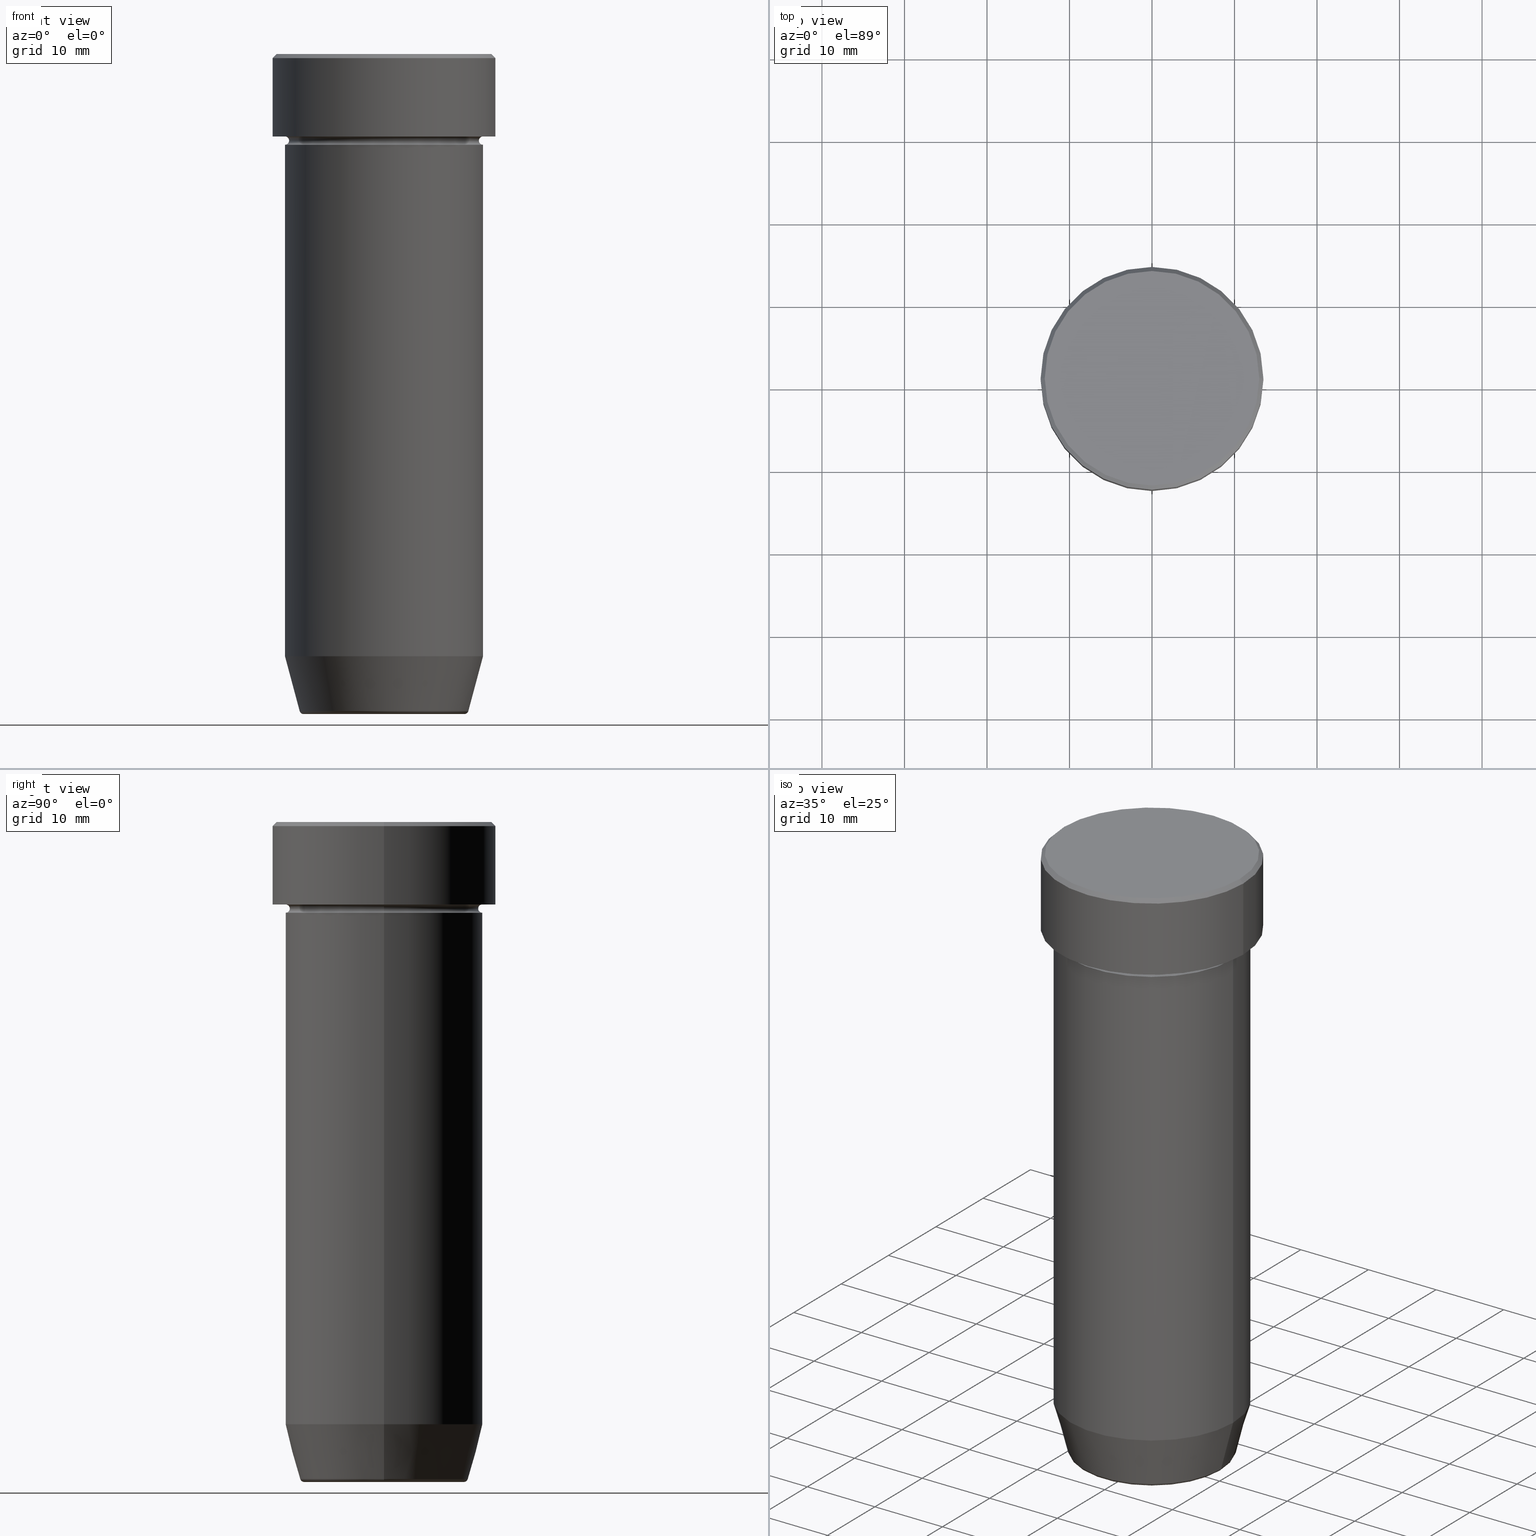
[diagram: canonical four-view strip — front | top / right | iso, engineering-drawing reading convention]
A machine part, canonical four-view strip (front | top / right | iso — engineering-drawing reading convention). The complete STEP part file that produces these views, byte-faithful:
ISO-10303-21;
HEADER;
FILE_DESCRIPTION (( 'STEP AP203' ),
    '1' );
FILE_NAME ('1dca.STEP',
    '2024-01-02T19:20:45',
    ( '' ),
    ( '' ),
    'SwSTEP 2.0',
    'SolidWorks 2019',
    '' );
FILE_SCHEMA (( 'CONFIG_CONTROL_DESIGN' ));
ENDSEC;

DATA;
#1 = CARTESIAN_POINT ( 'NONE',  ( 0.000000000000000000, 0.000000000000000000, -11.00000000000000000 ) ) ;
#2 = DIRECTION ( 'NONE',  ( -0.000000000000000000, -0.000000000000000000, 1.000000000000000000 ) ) ;
#3 = CARTESIAN_POINT ( 'NONE',  ( 0.000000000000000000, 0.000000000000000000, 0.000000000000000000 ) ) ;
#4 = DIRECTION ( 'NONE',  ( -0.000000000000000000, -0.000000000000000000, 1.000000000000000000 ) ) ;
#5 = EDGE_LOOP ( 'NONE', ( #470, #547, #211, #164 ) ) ;
#6 = VERTEX_POINT ( 'NONE', #322 ) ;
#7 = ORIENTED_EDGE ( 'NONE', *, *, #129, .F. ) ;
#8 = TOROIDAL_SURFACE ( 'NONE', #348, 12.00000000000000000, 0.5000000000000000000 ) ;
#9 = CIRCLE ( 'NONE', #247, 10.22365507213719837 ) ;
#10 = CC_DESIGN_APPROVAL ( #597, ( #464 ) ) ;
#11 = ADVANCED_FACE ( 'NONE', ( #403 ), #337, .T. ) ;
#12 = CARTESIAN_POINT ( 'NONE',  ( 0.000000000000000000, 0.000000000000000000, 0.000000000000000000 ) ) ;
#13 = ORIENTED_EDGE ( 'NONE', *, *, #390, .T. ) ;
#14 = APPROVAL_DATE_TIME ( #434, #253 ) ;
#15 = LINE ( 'NONE', #551, #505 ) ;
#16 = CALENDAR_DATE ( 2024, 2, 1 ) ;
#17 = CARTESIAN_POINT ( 'NONE',  ( -13.50000000000000000, 1.653273178848926867E-15, -0.5000000000000091038 ) ) ;
#18 = ADVANCED_FACE ( 'NONE', ( #95 ), #202, .T. ) ;
#19 = APPROVAL_STATUS ( 'not_yet_approved' ) ;
#20 = CONICAL_SURFACE ( 'NONE', #443, 10.12435565298214080, 0.2617993877991493523 ) ;
#21 = CIRCLE ( 'NONE', #491, 0.5000000000000004441 ) ;
#22 = CARTESIAN_POINT ( 'NONE',  ( 0.000000000000000000, 0.000000000000000000, -80.00000000000000000 ) ) ;
#23 = ORIENTED_EDGE ( 'NONE', *, *, #304, .F. ) ;
#24 = ORIENTED_EDGE ( 'NONE', *, *, #570, .F. ) ;
#25 = APPLICATION_PROTOCOL_DEFINITION ( 'international standard', 'config_control_design', 1994, #76 ) ;
#26 = ORIENTED_EDGE ( 'NONE', *, *, #486, .F. ) ;
#27 = CARTESIAN_POINT ( 'NONE',  ( 12.00000000000000000, 1.469576158976823947E-15, -9.999999999999998224 ) ) ;
#28 = DIRECTION ( 'NONE',  ( 0.000000000000000000, 0.000000000000000000, -1.000000000000000000 ) ) ;
#29 = ORIENTED_EDGE ( 'NONE', *, *, #447, .T. ) ;
#30 = DIRECTION ( 'NONE',  ( -0.000000000000000000, -0.000000000000000000, 1.000000000000000000 ) ) ;
#31 = ORIENTED_EDGE ( 'NONE', *, *, #125, .T. ) ;
#32 = EDGE_CURVE ( 'NONE', #56, #594, #393, .T. ) ;
#33 = CIRCLE ( 'NONE', #316, 12.99999999999999645 ) ;
#34 = EDGE_LOOP ( 'NONE', ( #484, #43, #24, #92 ) ) ;
#35 = CARTESIAN_POINT ( 'NONE',  ( 0.000000000000000000, 0.000000000000000000, -9.999999999999998224 ) ) ;
#36 = PLANE ( 'NONE',  #260 ) ;
#37 = CARTESIAN_POINT ( 'NONE',  ( -12.99999999999999645, 0.000000000000000000, 0.000000000000000000 ) ) ;
#38 = ADVANCED_FACE ( 'NONE', ( #455 ), #8, .F. ) ;
#39 = APPLICATION_CONTEXT ( 'configuration controlled 3d designs of mechanical parts and assemblies' ) ;
#40 = DIRECTION ( 'NONE',  ( -0.000000000000000000, -0.000000000000000000, 1.000000000000000000 ) ) ;
#41 = CARTESIAN_POINT ( 'NONE',  ( -13.50000000000000000, 1.653273178848926867E-15, 0.000000000000000000 ) ) ;
#42 = AXIS2_PLACEMENT_3D ( 'NONE', #347, #250, #245 ) ;
#43 = ORIENTED_EDGE ( 'NONE', *, *, #66, .T. ) ;
#44 = CARTESIAN_POINT ( 'NONE',  ( 13.50000000000000000, 0.000000000000000000, 0.000000000000000000 ) ) ;
#45 = ORIENTED_EDGE ( 'NONE', *, *, #400, .F. ) ;
#46 = DIRECTION ( 'NONE',  ( -0.000000000000000000, -0.000000000000000000, 1.000000000000000000 ) ) ;
#47 = DIRECTION ( 'NONE',  ( -0.000000000000000000, -0.000000000000000000, 1.000000000000000000 ) ) ;
#48 = EDGE_CURVE ( 'NONE', #571, #215, #308, .T. ) ;
#49 = VERTEX_POINT ( 'NONE', #138 ) ;
#50 = TOROIDAL_SURFACE ( 'NONE', #113, 9.740692158992660055, 0.5000000000000000000 ) ;
#51 = AXIS2_PLACEMENT_3D ( 'NONE', #318, #133, #371 ) ;
#52 = DIRECTION ( 'NONE',  ( -0.000000000000000000, -0.000000000000000000, 1.000000000000000000 ) ) ;
#53 = CARTESIAN_POINT ( 'NONE',  ( -9.740692158992660055, 1.192890747399008259E-15, -79.50000000000000000 ) ) ;
#54 = CARTESIAN_POINT ( 'NONE',  ( 12.99999999999999645, 1.622657008870242882E-15, 0.000000000000000000 ) ) ;
#55 = ORIENTED_EDGE ( 'NONE', *, *, #212, .F. ) ;
#56 = VERTEX_POINT ( 'NONE', #494 ) ;
#57 = ADVANCED_FACE ( 'NONE', ( #372 ), #20, .T. ) ;
#58 = DIRECTION ( 'NONE',  ( -1.224646799147353207E-16, 1.000000000000000000, 0.000000000000000000 ) ) ;
#59 = ORIENTED_EDGE ( 'NONE', *, *, #204, .F. ) ;
#60 = ORIENTED_EDGE ( 'NONE', *, *, #230, .F. ) ;
#61 = ORIENTED_EDGE ( 'NONE', *, *, #129, .T. ) ;
#62 = COORDINATED_UNIVERSAL_TIME_OFFSET ( 1, 0, .AHEAD. ) ;
#63 = FACE_OUTER_BOUND ( 'NONE', #209, .T. ) ;
#64 = SECURITY_CLASSIFICATION_LEVEL ( 'unclassified' ) ;
#65 = CYLINDRICAL_SURFACE ( 'NONE', #409, 13.50000000000000000 ) ;
#66 = EDGE_CURVE ( 'NONE', #6, #291, #410, .T. ) ;
#67 = CALENDAR_DATE ( 2024, 2, 1 ) ;
#68 = CARTESIAN_POINT ( 'NONE',  ( 9.740692158992660055, 0.000000000000000000, -79.50000000000000000 ) ) ;
#69 = AXIS2_PLACEMENT_3D ( 'NONE', #281, #234, #539 ) ;
#70 = CIRCLE ( 'NONE', #130, 0.5000000000000004441 ) ;
#71 = DIRECTION ( 'NONE',  ( 1.000000000000000000, 0.000000000000000000, 0.000000000000000000 ) ) ;
#72 = APPROVAL_PERSON_ORGANIZATION ( #396, #253, #482 ) ;
#73 = DIRECTION ( 'NONE',  ( 1.000000000000000000, 0.000000000000000000, 0.000000000000000000 ) ) ;
#74 = ADVANCED_FACE ( 'NONE', ( #87 ), #142, .T. ) ;
#75 = CARTESIAN_POINT ( 'NONE',  ( -9.740692158992660055, 1.222463696683474999E-15, -80.00000000000000000 ) ) ;
#76 = APPLICATION_CONTEXT ( 'configuration controlled 3d designs of mechanical parts and assemblies' ) ;
#77 = DIRECTION ( 'NONE',  ( -0.000000000000000000, -0.000000000000000000, 1.000000000000000000 ) ) ;
#78 = TOROIDAL_SURFACE ( 'NONE', #416, 12.00000000000000000, 0.5000000000000000000 ) ;
#79 = AXIS2_PLACEMENT_3D ( 'NONE', #321, #40, #104 ) ;
#80 = DIRECTION ( 'NONE',  ( 1.000000000000000000, 0.000000000000000000, 0.000000000000000000 ) ) ;
#81 = DIRECTION ( 'NONE',  ( 1.000000000000000000, 0.000000000000000000, 0.000000000000000000 ) ) ;
#82 = ORIENTED_EDGE ( 'NONE', *, *, #502, .T. ) ;
#83 = ADVANCED_FACE ( 'NONE', ( #134 ), #599, .F. ) ;
#84 = PERSON_AND_ORGANIZATION ( #312, #276 ) ;
#85 = DIRECTION ( 'NONE',  ( -0.7071067811865439090, 0.000000000000000000, -0.7071067811865512365 ) ) ;
#86 = CC_DESIGN_DATE_AND_TIME_ASSIGNMENT ( #254, #471, ( #340 ) ) ;
#87 = FACE_OUTER_BOUND ( 'NONE', #294, .T. ) ;
#88 = CIRCLE ( 'NONE', #327, 12.00000000000000000 ) ;
#89 = AXIS2_PLACEMENT_3D ( 'NONE', #357, #77, #529 ) ;
#90 = DIRECTION ( 'NONE',  ( -0.000000000000000000, -0.000000000000000000, 1.000000000000000000 ) ) ;
#91 = DIRECTION ( 'NONE',  ( 0.000000000000000000, 0.000000000000000000, -1.000000000000000000 ) ) ;
#92 = ORIENTED_EDGE ( 'NONE', *, *, #102, .F. ) ;
#93 = EDGE_CURVE ( 'NONE', #107, #571, #593, .T. ) ;
#94 = CARTESIAN_POINT ( 'NONE',  ( 0.000000000000000000, 0.000000000000000000, -80.00000000000000000 ) ) ;
#95 = FACE_OUTER_BOUND ( 'NONE', #263, .T. ) ;
#96 = DIRECTION ( 'NONE',  ( -0.000000000000000000, -0.000000000000000000, 1.000000000000000000 ) ) ;
#97 = CARTESIAN_POINT ( 'NONE',  ( -10.12435565298214080, 1.239875974385398941E-15, -80.00000000000000000 ) ) ;
#98 = LOCAL_TIME ( 20, 20, 45.00000000000000000, #62 ) ;
#99 = DIRECTION ( 'NONE',  ( 1.000000000000000000, 0.000000000000000000, 0.000000000000000000 ) ) ;
#100 = DIRECTION ( 'NONE',  ( 1.000000000000000000, 0.000000000000000000, 0.000000000000000000 ) ) ;
#101 = ORIENTED_EDGE ( 'NONE', *, *, #344, .F. ) ;
#102 = EDGE_CURVE ( 'NONE', #279, #594, #596, .T. ) ;
#103 = DESIGN_CONTEXT ( 'detailed design', #76, 'design' ) ;
#104 = DIRECTION ( 'NONE',  ( 1.000000000000000000, 0.000000000000000000, 0.000000000000000000 ) ) ;
#105 = ORIENTED_EDGE ( 'NONE', *, *, #223, .F. ) ;
#106 = DIRECTION ( 'NONE',  ( -1.000000000000000000, 0.000000000000000000, 0.000000000000000000 ) ) ;
#107 = VERTEX_POINT ( 'NONE', #330 ) ;
#108 = ORIENTED_EDGE ( 'NONE', *, *, #561, .T. ) ;
#109 = PERSON_AND_ORGANIZATION_ROLE ( 'creator' ) ;
#110 = CARTESIAN_POINT ( 'NONE',  ( 0.000000000000000000, 0.000000000000000000, -10.49999999999999822 ) ) ;
#111 = ORIENTED_EDGE ( 'NONE', *, *, #561, .F. ) ;
#112 = AXIS2_PLACEMENT_3D ( 'NONE', #500, #323, #229 ) ;
#113 = AXIS2_PLACEMENT_3D ( 'NONE', #526, #577, #73 ) ;
#114 = EDGE_CURVE ( 'NONE', #143, #290, #426, .T. ) ;
#115 = CARTESIAN_POINT ( 'NONE',  ( 0.000000000000000000, 0.000000000000000000, 0.000000000000000000 ) ) ;
#116 = ORIENTED_EDGE ( 'NONE', *, *, #32, .F. ) ;
#117 = PERSON_AND_ORGANIZATION_ROLE ( 'design_owner' ) ;
#118 = FACE_OUTER_BOUND ( 'NONE', #241, .T. ) ;
#119 = LINE ( 'NONE', #261, #173 ) ;
#120 = APPROVAL_DATE_TIME ( #520, #597 ) ;
#121 = CLOSED_SHELL ( 'NONE', ( #438, #57, #424, #83, #176, #11, #583, #414 ) ) ;
#122 = VECTOR ( 'NONE', #436, 1000.000000000000000 ) ;
#123 = ORIENTED_EDGE ( 'NONE', *, *, #249, .T. ) ;
#124 = DIRECTION ( 'NONE',  ( -0.000000000000000000, -0.000000000000000000, 1.000000000000000000 ) ) ;
#125 = EDGE_CURVE ( 'NONE', #510, #215, #449, .T. ) ;
#126 = ORIENTED_EDGE ( 'NONE', *, *, #344, .T. ) ;
#127 = CARTESIAN_POINT ( 'NONE',  ( 0.000000000000000000, 0.000000000000000000, 0.000000000000000000 ) ) ;
#128 = FACE_OUTER_BOUND ( 'NONE', #353, .T. ) ;
#129 = EDGE_CURVE ( 'NONE', #49, #378, #578, .T. ) ;
#130 = AXIS2_PLACEMENT_3D ( 'NONE', #53, #492, #591 ) ;
#131 = AXIS2_PLACEMENT_3D ( 'NONE', #421, #269, #99 ) ;
#132 = DIRECTION ( 'NONE',  ( 1.000000000000000000, 0.000000000000000000, 0.000000000000000000 ) ) ;
#133 = DIRECTION ( 'NONE',  ( 0.000000000000000000, 0.000000000000000000, 1.000000000000000000 ) ) ;
#134 = FACE_OUTER_BOUND ( 'NONE', #184, .T. ) ;
#135 = ORIENTED_EDGE ( 'NONE', *, *, #212, .T. ) ;
#136 = DIRECTION ( 'NONE',  ( 0.000000000000000000, -0.000000000000000000, 1.000000000000000000 ) ) ;
#137 = CARTESIAN_POINT ( 'NONE',  ( -12.00000000000000000, 1.469576158976823947E-15, 0.000000000000000000 ) ) ;
#138 = CARTESIAN_POINT ( 'NONE',  ( -12.00000000000000000, 1.469576158976823947E-15, -73.00000000000000000 ) ) ;
#139 = AXIS2_PLACEMENT_3D ( 'NONE', #458, #47, #418 ) ;
#140 = CIRCLE ( 'NONE', #394, 0.5000000000000004441 ) ;
#141 = EDGE_CURVE ( 'NONE', #536, #450, #220, .T. ) ;
#142 = PLANE ( 'NONE',  #69 ) ;
#143 = VERTEX_POINT ( 'NONE', #413 ) ;
#144 = DIRECTION ( 'NONE',  ( -0.000000000000000000, -0.000000000000000000, 1.000000000000000000 ) ) ;
#145 = DIRECTION ( 'NONE',  ( 1.000000000000000000, 0.000000000000000000, 0.000000000000000000 ) ) ;
#146 = EDGE_CURVE ( 'NONE', #6, #279, #554, .T. ) ;
#147 = CYLINDRICAL_SURFACE ( 'NONE', #517, 12.00000000000000000 ) ;
#148 = EDGE_LOOP ( 'NONE', ( #59, #341, #111, #420 ) ) ;
#149 = AXIS2_PLACEMENT_3D ( 'NONE', #284, #52, #342 ) ;
#150 = ORIENTED_EDGE ( 'NONE', *, *, #48, .F. ) ;
#151 = DIRECTION ( 'NONE',  ( -1.000000000000000000, -1.224646799147353454E-16, 0.000000000000000000 ) ) ;
#152 = VERTEX_POINT ( 'NONE', #225 ) ;
#153 = ORIENTED_EDGE ( 'NONE', *, *, #146, .T. ) ;
#154 = APPROVAL_STATUS ( 'not_yet_approved' ) ;
#155 = CARTESIAN_POINT ( 'NONE',  ( -13.50000000000000000, 1.653273178848926867E-15, -10.00000000000000000 ) ) ;
#156 = DATE_AND_TIME ( #345, #534 ) ;
#157 = CYLINDRICAL_SURFACE ( 'NONE', #172, 12.00000000000000000 ) ;
#158 = MANIFOLD_SOLID_BREP ( 'Zaoblit4', #121 ) ;
#159 = AXIS2_PLACEMENT_3D ( 'NONE', #373, #91, #189 ) ;
#160 = PERSON_AND_ORGANIZATION_ROLE ( 'classification_officer' ) ;
#161 = AXIS2_PLACEMENT_3D ( 'NONE', #446, #306, #572 ) ;
#162 = ADVANCED_FACE ( 'NONE', ( #233 ), #375, .T. ) ;
#163 = DIRECTION ( 'NONE',  ( 1.000000000000000000, 0.000000000000000000, 0.000000000000000000 ) ) ;
#164 = ORIENTED_EDGE ( 'NONE', *, *, #114, .F. ) ;
#165 = ORIENTED_EDGE ( 'NONE', *, *, #114, .T. ) ;
#166 = DIRECTION ( 'NONE',  ( 1.000000000000000000, 0.000000000000000000, 0.000000000000000000 ) ) ;
#167 = EDGE_LOOP ( 'NONE', ( #246, #82 ) ) ;
#168 = APPROVAL_STATUS ( 'not_yet_approved' ) ;
#169 = DIRECTION ( 'NONE',  ( -0.000000000000000000, -0.000000000000000000, 1.000000000000000000 ) ) ;
#170 = ORIENTED_EDGE ( 'NONE', *, *, #456, .F. ) ;
#171 = EDGE_CURVE ( 'NONE', #307, #215, #535, .T. ) ;
#172 = AXIS2_PLACEMENT_3D ( 'NONE', #506, #463, #509 ) ;
#173 = VECTOR ( 'NONE', #169, 1000.000000000000000 ) ;
#174 = CARTESIAN_POINT ( 'NONE',  ( -12.00000000000000000, 1.469576158976823947E-15, -27.00000000000000000 ) ) ;
#175 = LINE ( 'NONE', #267, #544 ) ;
#176 = ADVANCED_FACE ( 'NONE', ( #200 ), #157, .T. ) ;
#177 = MECHANICAL_CONTEXT ( 'NONE', #39, 'mechanical' ) ;
#178 = VECTOR ( 'NONE', #270, 1000.000000000000000 ) ;
#179 = AXIS2_PLACEMENT_3D ( 'NONE', #427, #58, #151 ) ;
#180 = DIRECTION ( 'NONE',  ( -0.000000000000000000, -1.000000000000000000, -0.000000000000000000 ) ) ;
#181 = CARTESIAN_POINT ( 'NONE',  ( 0.000000000000000000, 0.000000000000000000, -0.5000000000000091038 ) ) ;
#182 = ORIENTED_EDGE ( 'NONE', *, *, #93, .T. ) ;
#183 = DIRECTION ( 'NONE',  ( -0.000000000000000000, -0.000000000000000000, 1.000000000000000000 ) ) ;
#184 = EDGE_LOOP ( 'NONE', ( #336, #29 ) ) ;
#185 = EDGE_CURVE ( 'NONE', #279, #6, #88, .T. ) ;
#186 = CARTESIAN_POINT ( 'NONE',  ( -12.00000000000000000, 0.000000000000000000, -10.49999999999999822 ) ) ;
#187 = VECTOR ( 'NONE', #383, 1000.000000000000114 ) ;
#188 = CIRCLE ( 'NONE', #339, 11.50000000000000000 ) ;
#189 = DIRECTION ( 'NONE',  ( -1.000000000000000000, 0.000000000000000000, -0.000000000000000000 ) ) ;
#190 = ORIENTED_EDGE ( 'NONE', *, *, #185, .F. ) ;
#191 = CARTESIAN_POINT ( 'NONE',  ( -12.99999999999999645, 0.000000000000000000, 0.000000000000000000 ) ) ;
#192 = ADVANCED_FACE ( 'NONE', ( #63 ), #65, .T. ) ;
#193 = DIRECTION ( 'NONE',  ( 1.000000000000000000, 0.000000000000000000, 0.000000000000000000 ) ) ;
#194 = DIRECTION ( 'NONE',  ( 1.000000000000000000, 0.000000000000000000, 0.000000000000000000 ) ) ;
#195 = CC_DESIGN_PERSON_AND_ORGANIZATION_ASSIGNMENT ( #199, #251, ( #366 ) ) ;
#196 = FACE_OUTER_BOUND ( 'NONE', #34, .T. ) ;
#197 = ORIENTED_EDGE ( 'NONE', *, *, #570, .T. ) ;
#198 = CONICAL_SURFACE ( 'NONE', #428, 12.99999999999999645, 0.7853981633974431720 ) ;
#199 = PERSON_AND_ORGANIZATION ( #312, #276 ) ;
#200 = FACE_OUTER_BOUND ( 'NONE', #203, .T. ) ;
#201 = FACE_BOUND ( 'NONE', #298, .T. ) ;
#202 = PLANE ( 'NONE',  #159 ) ;
#203 = EDGE_LOOP ( 'NONE', ( #271, #61, #419, #483 ) ) ;
#204 = EDGE_CURVE ( 'NONE', #217, #510, #33, .T. ) ;
#205 = PERSON_AND_ORGANIZATION ( #312, #276 ) ;
#206 = CARTESIAN_POINT ( 'NONE',  ( 0.000000000000000000, 0.000000000000000000, -27.00000000000000000 ) ) ;
#207 = CALENDAR_DATE ( 2024, 2, 1 ) ;
#208 = TOROIDAL_SURFACE ( 'NONE', #365, 12.00000000000000000, 0.5000000000000000000 ) ;
#209 = EDGE_LOOP ( 'NONE', ( #289, #232, #108, #431 ) ) ;
#210 = CARTESIAN_POINT ( 'NONE',  ( 12.99999999999999645, 1.592040838891558701E-15, 0.000000000000000000 ) ) ;
#211 = ORIENTED_EDGE ( 'NONE', *, *, #352, .F. ) ;
#212 = EDGE_CURVE ( 'NONE', #307, #107, #496, .T. ) ;
#213 = EDGE_LOOP ( 'NONE', ( #45, #55 ) ) ;
#214 = CARTESIAN_POINT ( 'NONE',  ( 0.000000000000000000, 0.000000000000000000, -27.00000000000000000 ) ) ;
#215 = VERTEX_POINT ( 'NONE', #17 ) ;
#216 = ADVANCED_BREP_SHAPE_REPRESENTATION ( '1dca', ( #545, #158, #51 ), #454 ) ;
#217 = VERTEX_POINT ( 'NONE', #54 ) ;
#218 = APPROVAL ( #168, 'NEUR�EN�' ) ;
#219 = CARTESIAN_POINT ( 'NONE',  ( 0.000000000000000000, 0.000000000000000000, -10.00000000000000000 ) ) ;
#220 = CIRCLE ( 'NONE', #226, 12.00000000000000000 ) ;
#221 = CIRCLE ( 'NONE', #580, 12.00000000000000000 ) ;
#222 = DIRECTION ( 'NONE',  ( -1.000000000000000000, 0.000000000000000000, 0.000000000000000000 ) ) ;
#223 = EDGE_CURVE ( 'NONE', #56, #440, #275, .T. ) ;
#224 = ORIENTED_EDGE ( 'NONE', *, *, #478, .F. ) ;
#225 = CARTESIAN_POINT ( 'NONE',  ( -10.22365507213719837, 1.360806402472383336E-15, -79.62940952255127058 ) ) ;
#226 = AXIS2_PLACEMENT_3D ( 'NONE', #498, #457, #273 ) ;
#227 =( NAMED_UNIT ( * ) PLANE_ANGLE_UNIT ( ) SI_UNIT ( $, .RADIAN. ) );
#228 = CIRCLE ( 'NONE', #89, 12.00000000000000000 ) ;
#229 = DIRECTION ( 'NONE',  ( -1.000000000000000000, 0.000000000000000000, -0.000000000000000000 ) ) ;
#230 = EDGE_CURVE ( 'NONE', #143, #56, #445, .T. ) ;
#231 = DIRECTION ( 'NONE',  ( 0.000000000000000000, 0.000000000000000000, -1.000000000000000000 ) ) ;
#232 = ORIENTED_EDGE ( 'NONE', *, *, #171, .T. ) ;
#233 = FACE_OUTER_BOUND ( 'NONE', #564, .T. ) ;
#234 = DIRECTION ( 'NONE',  ( 0.000000000000000000, -0.000000000000000000, 1.000000000000000000 ) ) ;
#235 = CIRCLE ( 'NONE', #285, 12.00000000000000000 ) ;
#236 = AXIS2_PLACEMENT_3D ( 'NONE', #1, #287, #194 ) ;
#237 = ORIENTED_EDGE ( 'NONE', *, *, #296, .F. ) ;
#238 = EDGE_CURVE ( 'NONE', #49, #450, #15, .T. ) ;
#239 = CARTESIAN_POINT ( 'NONE',  ( 12.00000000000000000, 0.000000000000000000, -27.00000000000000000 ) ) ;
#240 = DIRECTION ( 'NONE',  ( 1.000000000000000000, 0.000000000000000000, 0.000000000000000000 ) ) ;
#241 = EDGE_LOOP ( 'NONE', ( #477, #467, #559, #170 ) ) ;
#242 = ORIENTED_EDGE ( 'NONE', *, *, #592, .T. ) ;
#243 =( LENGTH_UNIT ( ) NAMED_UNIT ( * ) SI_UNIT ( .MILLI., .METRE. ) );
#244 = CARTESIAN_POINT ( 'NONE',  ( 0.000000000000000000, 0.000000000000000000, -10.49999999999999822 ) ) ;
#245 = DIRECTION ( 'NONE',  ( 1.000000000000000000, 0.000000000000000000, 0.000000000000000000 ) ) ;
#246 = ORIENTED_EDGE ( 'NONE', *, *, #362, .T. ) ;
#247 = AXIS2_PLACEMENT_3D ( 'NONE', #518, #549, #106 ) ;
#248 = ORIENTED_EDGE ( 'NONE', *, *, #406, .T. ) ;
#249 = EDGE_CURVE ( 'NONE', #143, #291, #21, .T. ) ;
#250 = DIRECTION ( 'NONE',  ( -0.000000000000000000, -0.000000000000000000, 1.000000000000000000 ) ) ;
#251 = PERSON_AND_ORGANIZATION_ROLE ( 'design_supplier' ) ;
#252 = CARTESIAN_POINT ( 'NONE',  ( -12.00000000000000000, 1.469576158976823947E-15, -11.00000000000000000 ) ) ;
#253 = APPROVAL ( #154, 'NEUR�EN�' ) ;
#254 = DATE_AND_TIME ( #67, #286 ) ;
#255 = EDGE_LOOP ( 'NONE', ( #60, #123, #126, #116 ) ) ;
#256 = CARTESIAN_POINT ( 'NONE',  ( 10.22365507213719837, 0.000000000000000000, -79.62940952255127058 ) ) ;
#257 = PRODUCT_DEFINITION_SHAPE ( 'NONE', 'NONE',  #464 ) ;
#258 = CLOSED_SHELL ( 'NONE', ( #540, #324, #38, #274, #192, #18, #74, #548, #314, #162, #524, #368, #382 ) ) ;
#259 = CC_DESIGN_PERSON_AND_ORGANIZATION_ASSIGNMENT ( #84, #117, ( #516 ) ) ;
#260 = AXIS2_PLACEMENT_3D ( 'NONE', #550, #136, #145 ) ;
#261 = CARTESIAN_POINT ( 'NONE',  ( 12.00000000000000000, 0.000000000000000000, 0.000000000000000000 ) ) ;
#262 = DIRECTION ( 'NONE',  ( 1.000000000000000000, 0.000000000000000000, 0.000000000000000000 ) ) ;
#263 = EDGE_LOOP ( 'NONE', ( #190, #435 ) ) ;
#264 = DIRECTION ( 'NONE',  ( -0.000000000000000000, -0.000000000000000000, 1.000000000000000000 ) ) ;
#265 = AXIS2_PLACEMENT_3D ( 'NONE', #442, #30, #222 ) ;
#266 = CARTESIAN_POINT ( 'NONE',  ( 0.000000000000000000, 0.000000000000000000, -80.00000000000000000 ) ) ;
#267 = CARTESIAN_POINT ( 'NONE',  ( 10.12435565298214080, 0.000000000000000000, -80.00000000000000000 ) ) ;
#268 = EDGE_CURVE ( 'NONE', #474, #152, #9, .T. ) ;
#269 = DIRECTION ( 'NONE',  ( 0.000000000000000000, 0.000000000000000000, -1.000000000000000000 ) ) ;
#270 = DIRECTION ( 'NONE',  ( -0.000000000000000000, -0.000000000000000000, 1.000000000000000000 ) ) ;
#271 = ORIENTED_EDGE ( 'NONE', *, *, #238, .F. ) ;
#272 = CARTESIAN_POINT ( 'NONE',  ( 0.000000000000000000, 0.000000000000000000, -10.49999999999999822 ) ) ;
#273 = DIRECTION ( 'NONE',  ( 1.000000000000000000, 0.000000000000000000, 0.000000000000000000 ) ) ;
#274 = ADVANCED_FACE ( 'NONE', ( #196 ), #147, .T. ) ;
#275 = CIRCLE ( 'NONE', #179, 0.5000000000000004441 ) ;
#276 = ORGANIZATION ( 'NEUR�EN�', 'NEUR�EN�', '' ) ;
#277 = CARTESIAN_POINT ( 'NONE',  ( 12.00000000000000000, 0.000000000000000000, -10.49999999999999822 ) ) ;
#278 = DIRECTION ( 'NONE',  ( 0.000000000000000000, 0.000000000000000000, -1.000000000000000000 ) ) ;
#279 = VERTEX_POINT ( 'NONE', #479 ) ;
#280 = CC_DESIGN_DATE_AND_TIME_ASSIGNMENT ( #525, #356, ( #464 ) ) ;
#281 = CARTESIAN_POINT ( 'NONE',  ( 0.000000000000000000, 0.000000000000000000, 0.000000000000000000 ) ) ;
#282 = FACE_OUTER_BOUND ( 'NONE', #148, .T. ) ;
#283 = VECTOR ( 'NONE', #183, 1000.000000000000000 ) ;
#284 = CARTESIAN_POINT ( 'NONE',  ( 0.000000000000000000, 0.000000000000000000, -73.00000000000000000 ) ) ;
#285 = AXIS2_PLACEMENT_3D ( 'NONE', #214, #355, #303 ) ;
#286 = LOCAL_TIME ( 20, 20, 45.00000000000000000, #573 ) ;
#287 = DIRECTION ( 'NONE',  ( -0.000000000000000000, -0.000000000000000000, 1.000000000000000000 ) ) ;
#288 = CARTESIAN_POINT ( 'NONE',  ( 0.000000000000000000, 13.50000000000000000, -9.999999999999998224 ) ) ;
#289 = ORIENTED_EDGE ( 'NONE', *, *, #400, .T. ) ;
#290 = VERTEX_POINT ( 'NONE', #513 ) ;
#291 = VERTEX_POINT ( 'NONE', #252 ) ;
#292 = DIRECTION ( 'NONE',  ( -1.000000000000000000, 0.000000000000000000, -0.000000000000000000 ) ) ;
#293 = EDGE_LOOP ( 'NONE', ( #237, #574, #248, #7 ) ) ;
#294 = EDGE_LOOP ( 'NONE', ( #242, #331 ) ) ;
#295 = COORDINATED_UNIVERSAL_TIME_OFFSET ( 1, 0, .AHEAD. ) ;
#296 = EDGE_CURVE ( 'NONE', #152, #49, #503, .T. ) ;
#297 = DIRECTION ( 'NONE',  ( 0.000000000000000000, 0.000000000000000000, -1.000000000000000000 ) ) ;
#298 = EDGE_LOOP ( 'NONE', ( #568, #13 ) ) ;
#299 = AXIS2_PLACEMENT_3D ( 'NONE', #521, #124, #166 ) ;
#300 = CALENDAR_DATE ( 2024, 2, 1 ) ;
#301 = DIRECTION ( 'NONE',  ( -0.000000000000000000, -0.000000000000000000, 1.000000000000000000 ) ) ;
#302 = COORDINATED_UNIVERSAL_TIME_OFFSET ( 1, 0, .AHEAD. ) ;
#303 = DIRECTION ( 'NONE',  ( 1.000000000000000000, 0.000000000000000000, 0.000000000000000000 ) ) ;
#304 = EDGE_CURVE ( 'NONE', #378, #49, #401, .T. ) ;
#305 = ORIENTED_EDGE ( 'NONE', *, *, #268, .T. ) ;
#306 = DIRECTION ( 'NONE',  ( -0.000000000000000000, -0.000000000000000000, 1.000000000000000000 ) ) ;
#307 = VERTEX_POINT ( 'NONE', #155 ) ;
#308 = CIRCLE ( 'NONE', #532, 13.50000000000000000 ) ;
#309 = AXIS2_PLACEMENT_3D ( 'NONE', #244, #432, #100 ) ;
#310 = CARTESIAN_POINT ( 'NONE',  ( 0.000000000000000000, 0.000000000000000000, -10.49999999999999822 ) ) ;
#311 = UNCERTAINTY_MEASURE_WITH_UNIT (LENGTH_MEASURE( 1.000000000000000082E-05 ), #243, 'distance_accuracy_value', 'NONE');
#312 = PERSON ( 'NEUR�EN�', 'NEUR�EN�', 'NEUR�EN�', ('NEUR�EN�'), ('NEUR�EN�'), ('NEUR�EN�') ) ;
#313 = DIRECTION ( 'NONE',  ( 0.2588190451025206840, 0.000000000000000000, 0.9659258262890683122 ) ) ;
#314 = ADVANCED_FACE ( 'NONE', ( #201, #389 ), #338, .T. ) ;
#315 = LINE ( 'NONE', #210, #122 ) ;
#316 = AXIS2_PLACEMENT_3D ( 'NONE', #12, #380, #429 ) ;
#317 = CC_DESIGN_SECURITY_CLASSIFICATION ( #340, ( #366 ) ) ;
#318 = CARTESIAN_POINT ( 'NONE',  ( 0.000000000000000000, 0.000000000000000000, 0.000000000000000000 ) ) ;
#319 = DIRECTION ( 'NONE',  ( 1.000000000000000000, 0.000000000000000000, 0.000000000000000000 ) ) ;
#320 = ORIENTED_EDGE ( 'NONE', *, *, #406, .F. ) ;
#321 = CARTESIAN_POINT ( 'NONE',  ( 0.000000000000000000, 0.000000000000000000, 0.000000000000000000 ) ) ;
#322 = CARTESIAN_POINT ( 'NONE',  ( -12.00000000000000000, 1.469576158976823947E-15, -27.00000000000000000 ) ) ;
#323 = DIRECTION ( 'NONE',  ( 0.000000000000000000, 0.000000000000000000, -1.000000000000000000 ) ) ;
#324 = ADVANCED_FACE ( 'NONE', ( #469 ), #78, .F. ) ;
#325 = CARTESIAN_POINT ( 'NONE',  ( 9.740692158992660055, 0.000000000000000000, -80.00000000000000000 ) ) ;
#326 = CARTESIAN_POINT ( 'NONE',  ( 0.000000000000000000, 0.000000000000000000, -10.49999999999999822 ) ) ;
#327 = AXIS2_PLACEMENT_3D ( 'NONE', #206, #4, #193 ) ;
#328 = AXIS2_PLACEMENT_3D ( 'NONE', #219, #569, #163 ) ;
#329 = CIRCLE ( 'NONE', #131, 13.50000000000000000 ) ;
#330 = CARTESIAN_POINT ( 'NONE',  ( 13.50000000000000000, 0.000000000000000000, -10.00000000000000000 ) ) ;
#331 = ORIENTED_EDGE ( 'NONE', *, *, #204, .T. ) ;
#332 = CARTESIAN_POINT ( 'NONE',  ( 12.00000000000000000, 0.000000000000000000, 0.000000000000000000 ) ) ;
#333 = DIRECTION ( 'NONE',  ( 1.000000000000000000, 0.000000000000000000, 0.000000000000000000 ) ) ;
#334 = EDGE_LOOP ( 'NONE', ( #511, #576, #343, #408 ) ) ;
#335 = DIRECTION ( 'NONE',  ( -1.000000000000000000, 0.000000000000000000, 0.000000000000000000 ) ) ;
#336 = ORIENTED_EDGE ( 'NONE', *, *, #141, .T. ) ;
#337 = CONICAL_SURFACE ( 'NONE', #415, 10.12435565298214080, 0.2617993877991493523 ) ;
#338 = PLANE ( 'NONE',  #476 ) ;
#339 = AXIS2_PLACEMENT_3D ( 'NONE', #310, #264, #262 ) ;
#340 = SECURITY_CLASSIFICATION ( '', '', #64 ) ;
#341 = ORIENTED_EDGE ( 'NONE', *, *, #376, .T. ) ;
#342 = DIRECTION ( 'NONE',  ( 1.000000000000000000, 0.000000000000000000, 0.000000000000000000 ) ) ;
#343 = ORIENTED_EDGE ( 'NONE', *, *, #456, .T. ) ;
#344 = EDGE_CURVE ( 'NONE', #291, #594, #359, .T. ) ;
#345 = CALENDAR_DATE ( 2024, 2, 1 ) ;
#346 = CARTESIAN_POINT ( 'NONE',  ( 0.000000000000000000, 0.000000000000000000, -11.00000000000000000 ) ) ;
#347 = CARTESIAN_POINT ( 'NONE',  ( 0.000000000000000000, 0.000000000000000000, -10.00000000000000000 ) ) ;
#348 = AXIS2_PLACEMENT_3D ( 'NONE', #326, #407, #132 ) ;
#349 = AXIS2_PLACEMENT_3D ( 'NONE', #423, #504, #501 ) ;
#350 = CIRCLE ( 'NONE', #79, 12.99999999999999645 ) ;
#351 = PERSON_AND_ORGANIZATION ( #312, #276 ) ;
#352 = EDGE_CURVE ( 'NONE', #290, #440, #228, .T. ) ;
#353 = EDGE_LOOP ( 'NONE', ( #105, #557, #165, #558 ) ) ;
#354 = CYLINDRICAL_SURFACE ( 'NONE', #299, 12.00000000000000000 ) ;
#355 = DIRECTION ( 'NONE',  ( -0.000000000000000000, -0.000000000000000000, 1.000000000000000000 ) ) ;
#356 = DATE_TIME_ROLE ( 'creation_date' ) ;
#357 = CARTESIAN_POINT ( 'NONE',  ( 0.000000000000000000, 0.000000000000000000, -9.999999999999998224 ) ) ;
#358 = AXIS2_PLACEMENT_3D ( 'NONE', #586, #546, #369 ) ;
#359 = CIRCLE ( 'NONE', #567, 12.00000000000000000 ) ;
#360 = LOCAL_TIME ( 20, 20, 45.00000000000000000, #566 ) ;
#361 = FACE_OUTER_BOUND ( 'NONE', #538, .T. ) ;
#362 = EDGE_CURVE ( 'NONE', #508, #433, #589, .T. ) ;
#363 = DIRECTION ( 'NONE',  ( 1.000000000000000000, 0.000000000000000000, 0.000000000000000000 ) ) ;
#364 = VECTOR ( 'NONE', #595, 1000.000000000000000 ) ;
#365 = AXIS2_PLACEMENT_3D ( 'NONE', #272, #96, #80 ) ;
#366 = PRODUCT_DEFINITION_FORMATION_WITH_SPECIFIED_SOURCE ( 'LIBOVOLN�', '', #516, .NOT_KNOWN. ) ;
#367 = DIRECTION ( 'NONE',  ( 1.000000000000000000, 0.000000000000000000, 0.000000000000000000 ) ) ;
#368 = ADVANCED_FACE ( 'NONE', ( #128 ), #384, .F. ) ;
#369 = DIRECTION ( 'NONE',  ( 1.000000000000000000, 0.000000000000000000, 0.000000000000000000 ) ) ;
#370 = ORIENTED_EDGE ( 'NONE', *, *, #376, .F. ) ;
#371 = DIRECTION ( 'NONE',  ( 1.000000000000000000, 0.000000000000000000, 0.000000000000000000 ) ) ;
#372 = FACE_OUTER_BOUND ( 'NONE', #473, .T. ) ;
#373 = CARTESIAN_POINT ( 'NONE',  ( 0.000000000000000000, 12.00000000000000000, -27.00000000000000000 ) ) ;
#374 = AXIS2_PLACEMENT_3D ( 'NONE', #22, #439, #71 ) ;
#375 = CYLINDRICAL_SURFACE ( 'NONE', #358, 12.00000000000000000 ) ;
#376 = EDGE_CURVE ( 'NONE', #217, #571, #315, .T. ) ;
#377 = DIRECTION ( 'NONE',  ( -0.000000000000000000, -0.000000000000000000, 1.000000000000000000 ) ) ;
#378 = VERTEX_POINT ( 'NONE', #489 ) ;
#379 = FACE_OUTER_BOUND ( 'NONE', #487, .T. ) ;
#380 = DIRECTION ( 'NONE',  ( -0.000000000000000000, -0.000000000000000000, 1.000000000000000000 ) ) ;
#381 = CYLINDRICAL_SURFACE ( 'NONE', #395, 13.50000000000000000 ) ;
#382 = ADVANCED_FACE ( 'NONE', ( #361 ), #198, .T. ) ;
#383 = DIRECTION ( 'NONE',  ( -0.2588190451025206840, 3.169619151431763092E-17, 0.9659258262890683122 ) ) ;
#384 = TOROIDAL_SURFACE ( 'NONE', #519, 12.00000000000000000, 0.5000000000000000000 ) ;
#385 = AXIS2_PLACEMENT_3D ( 'NONE', #3, #448, #335 ) ;
#386 = DIRECTION ( 'NONE',  ( -1.000000000000000000, 1.224646799147353454E-16, 0.000000000000000000 ) ) ;
#387 = APPROVAL_DATE_TIME ( #156, #218 ) ;
#388 = ORIENTED_EDGE ( 'NONE', *, *, #304, .T. ) ;
#389 = FACE_OUTER_BOUND ( 'NONE', #213, .T. ) ;
#390 = EDGE_CURVE ( 'NONE', #440, #290, #221, .T. ) ;
#391 = PERSON_AND_ORGANIZATION ( #312, #276 ) ;
#392 = DIRECTION ( 'NONE',  ( -0.000000000000000000, -0.000000000000000000, 1.000000000000000000 ) ) ;
#393 = CIRCLE ( 'NONE', #472, 0.5000000000000004441 ) ;
#394 = AXIS2_PLACEMENT_3D ( 'NONE', #68, #523, #398 ) ;
#395 = AXIS2_PLACEMENT_3D ( 'NONE', #460, #537, #367 ) ;
#396 = PERSON_AND_ORGANIZATION ( #312, #276 ) ;
#397 = DIRECTION ( 'NONE',  ( 0.000000000000000000, 0.000000000000000000, -1.000000000000000000 ) ) ;
#398 = DIRECTION ( 'NONE',  ( 0.000000000000000000, 0.000000000000000000, -1.000000000000000000 ) ) ;
#399 = CARTESIAN_POINT ( 'NONE',  ( 0.000000000000000000, 0.000000000000000000, -10.49999999999999822 ) ) ;
#400 = EDGE_CURVE ( 'NONE', #107, #307, #461, .T. ) ;
#401 = CIRCLE ( 'NONE', #149, 12.00000000000000000 ) ;
#402 = DIRECTION ( 'NONE',  ( -0.000000000000000000, -0.000000000000000000, 1.000000000000000000 ) ) ;
#403 = FACE_OUTER_BOUND ( 'NONE', #293, .T. ) ;
#404 = CC_DESIGN_PERSON_AND_ORGANIZATION_ASSIGNMENT ( #480, #160, ( #340 ) ) ;
#405 = ORIENTED_EDGE ( 'NONE', *, *, #32, .T. ) ;
#406 = EDGE_CURVE ( 'NONE', #474, #378, #175, .T. ) ;
#407 = DIRECTION ( 'NONE',  ( -0.000000000000000000, -0.000000000000000000, 1.000000000000000000 ) ) ;
#408 = ORIENTED_EDGE ( 'NONE', *, *, #495, .F. ) ;
#409 = AXIS2_PLACEMENT_3D ( 'NONE', #465, #2, #240 ) ;
#410 = LINE ( 'NONE', #137, #178 ) ;
#411 = DIRECTION ( 'NONE',  ( 1.000000000000000000, 0.000000000000000000, 0.000000000000000000 ) ) ;
#412 = EDGE_LOOP ( 'NONE', ( #552, #26, #405, #197 ) ) ;
#413 = CARTESIAN_POINT ( 'NONE',  ( -11.50000000000000000, 1.438959988998139963E-15, -10.49999999999999822 ) ) ;
#414 = ADVANCED_FACE ( 'NONE', ( #488 ), #533, .T. ) ;
#415 = AXIS2_PLACEMENT_3D ( 'NONE', #266, #90, #582 ) ;
#416 = AXIS2_PLACEMENT_3D ( 'NONE', #110, #297, #475 ) ;
#417 = CC_DESIGN_APPROVAL ( #253, ( #340 ) ) ;
#418 = DIRECTION ( 'NONE',  ( 1.000000000000000000, 0.000000000000000000, 0.000000000000000000 ) ) ;
#419 = ORIENTED_EDGE ( 'NONE', *, *, #478, .T. ) ;
#420 = ORIENTED_EDGE ( 'NONE', *, *, #125, .F. ) ;
#421 = CARTESIAN_POINT ( 'NONE',  ( 0.000000000000000000, 0.000000000000000000, -0.5000000000000091038 ) ) ;
#422 = CARTESIAN_POINT ( 'NONE',  ( -12.00000000000000000, 1.469576158976823947E-15, -10.49999999999999822 ) ) ;
#423 = CARTESIAN_POINT ( 'NONE',  ( 0.000000000000000000, 0.000000000000000000, -80.00000000000000000 ) ) ;
#424 = ADVANCED_FACE ( 'NONE', ( #575 ), #354, .T. ) ;
#425 = DIRECTION ( 'NONE',  ( 0.000000000000000000, 0.000000000000000000, -1.000000000000000000 ) ) ;
#426 = CIRCLE ( 'NONE', #588, 0.5000000000000004441 ) ;
#427 = CARTESIAN_POINT ( 'NONE',  ( 12.00000000000000000, 1.469576158976823947E-15, -10.49999999999999822 ) ) ;
#428 = AXIS2_PLACEMENT_3D ( 'NONE', #127, #397, #481 ) ;
#429 = DIRECTION ( 'NONE',  ( 1.000000000000000000, 0.000000000000000000, 0.000000000000000000 ) ) ;
#430 = PERSON_AND_ORGANIZATION_ROLE ( 'creator' ) ;
#431 = ORIENTED_EDGE ( 'NONE', *, *, #93, .F. ) ;
#432 = DIRECTION ( 'NONE',  ( -0.000000000000000000, -0.000000000000000000, 1.000000000000000000 ) ) ;
#433 = VERTEX_POINT ( 'NONE', #75 ) ;
#434 = DATE_AND_TIME ( #300, #98 ) ;
#435 = ORIENTED_EDGE ( 'NONE', *, *, #146, .F. ) ;
#436 = DIRECTION ( 'NONE',  ( 0.7071067811865439090, 8.659560562354888485E-17, -0.7071067811865512365 ) ) ;
#437 = DIRECTION ( 'NONE',  ( -1.000000000000000000, 0.000000000000000000, 0.000000000000000000 ) ) ;
#438 = ADVANCED_FACE ( 'NONE', ( #118 ), #50, .T. ) ;
#439 = DIRECTION ( 'NONE',  ( 0.000000000000000000, 0.000000000000000000, -1.000000000000000000 ) ) ;
#440 = VERTEX_POINT ( 'NONE', #27 ) ;
#441 = PRODUCT_RELATED_PRODUCT_CATEGORY ( 'detail', '', ( #516 ) ) ;
#442 = CARTESIAN_POINT ( 'NONE',  ( 0.000000000000000000, 0.000000000000000000, -79.62940952255127058 ) ) ;
#443 = AXIS2_PLACEMENT_3D ( 'NONE', #94, #377, #319 ) ;
#444 = VECTOR ( 'NONE', #565, 1000.000000000000000 ) ;
#445 = CIRCLE ( 'NONE', #309, 11.50000000000000000 ) ;
#446 = CARTESIAN_POINT ( 'NONE',  ( 0.000000000000000000, 0.000000000000000000, -79.50000000000000000 ) ) ;
#447 = EDGE_CURVE ( 'NONE', #450, #536, #235, .T. ) ;
#448 = DIRECTION ( 'NONE',  ( 0.000000000000000000, 0.000000000000000000, -1.000000000000000000 ) ) ;
#449 = LINE ( 'NONE', #37, #543 ) ;
#450 = VERTEX_POINT ( 'NONE', #174 ) ;
#451 = FACE_OUTER_BOUND ( 'NONE', #167, .T. ) ;
#452 = CARTESIAN_POINT ( 'NONE',  ( 0.000000000000000000, 0.000000000000000000, -27.00000000000000000 ) ) ;
#453 = AXIS2_PLACEMENT_3D ( 'NONE', #452, #46, #81 ) ;
#454 =( GEOMETRIC_REPRESENTATION_CONTEXT ( 3 ) GLOBAL_UNCERTAINTY_ASSIGNED_CONTEXT ( ( #311 ) ) GLOBAL_UNIT_ASSIGNED_CONTEXT ( ( #243, #227, #531 ) ) REPRESENTATION_CONTEXT ( 'NONE', 'WORKASPACE' ) );
#455 = FACE_OUTER_BOUND ( 'NONE', #255, .T. ) ;
#456 = EDGE_CURVE ( 'NONE', #508, #474, #140, .T. ) ;
#457 = DIRECTION ( 'NONE',  ( -0.000000000000000000, -0.000000000000000000, 1.000000000000000000 ) ) ;
#458 = CARTESIAN_POINT ( 'NONE',  ( 0.000000000000000000, 0.000000000000000000, -73.00000000000000000 ) ) ;
#459 = ORIENTED_EDGE ( 'NONE', *, *, #171, .F. ) ;
#460 = CARTESIAN_POINT ( 'NONE',  ( 0.000000000000000000, 0.000000000000000000, 0.000000000000000000 ) ) ;
#461 = CIRCLE ( 'NONE', #328, 13.50000000000000000 ) ;
#462 = CIRCLE ( 'NONE', #236, 12.00000000000000000 ) ;
#463 = DIRECTION ( 'NONE',  ( -0.000000000000000000, -0.000000000000000000, 1.000000000000000000 ) ) ;
#464 = PRODUCT_DEFINITION ( 'NEZN�M�', '', #366, #103 ) ;
#465 = CARTESIAN_POINT ( 'NONE',  ( 0.000000000000000000, 0.000000000000000000, 0.000000000000000000 ) ) ;
#466 = ORIENTED_EDGE ( 'NONE', *, *, #296, .T. ) ;
#467 = ORIENTED_EDGE ( 'NONE', *, *, #515, .T. ) ;
#468 = CARTESIAN_POINT ( 'NONE',  ( 13.50000000000000000, 0.000000000000000000, -0.5000000000000091038 ) ) ;
#469 = FACE_OUTER_BOUND ( 'NONE', #5, .T. ) ;
#470 = ORIENTED_EDGE ( 'NONE', *, *, #230, .T. ) ;
#471 = DATE_TIME_ROLE ( 'classification_date' ) ;
#472 = AXIS2_PLACEMENT_3D ( 'NONE', #277, #541, #231 ) ;
#473 = EDGE_LOOP ( 'NONE', ( #305, #466, #23, #320 ) ) ;
#474 = VERTEX_POINT ( 'NONE', #256 ) ;
#475 = DIRECTION ( 'NONE',  ( -1.000000000000000000, 0.000000000000000000, 0.000000000000000000 ) ) ;
#476 = AXIS2_PLACEMENT_3D ( 'NONE', #288, #425, #292 ) ;
#477 = ORIENTED_EDGE ( 'NONE', *, *, #502, .F. ) ;
#478 = EDGE_CURVE ( 'NONE', #378, #536, #119, .T. ) ;
#479 = CARTESIAN_POINT ( 'NONE',  ( 12.00000000000000000, 0.000000000000000000, -27.00000000000000000 ) ) ;
#480 = PERSON_AND_ORGANIZATION ( #312, #276 ) ;
#481 = DIRECTION ( 'NONE',  ( -1.000000000000000000, 0.000000000000000000, 0.000000000000000000 ) ) ;
#482 = APPROVAL_ROLE ( '' ) ;
#483 = ORIENTED_EDGE ( 'NONE', *, *, #447, .F. ) ;
#484 = ORIENTED_EDGE ( 'NONE', *, *, #185, .T. ) ;
#485 = LOCAL_TIME ( 20, 20, 45.00000000000000000, #302 ) ;
#486 = EDGE_CURVE ( 'NONE', #56, #143, #188, .T. ) ;
#487 = EDGE_LOOP ( 'NONE', ( #459, #135, #182, #530 ) ) ;
#488 = FACE_OUTER_BOUND ( 'NONE', #334, .T. ) ;
#489 = CARTESIAN_POINT ( 'NONE',  ( 12.00000000000000000, 0.000000000000000000, -73.00000000000000000 ) ) ;
#490 = CC_DESIGN_PERSON_AND_ORGANIZATION_ASSIGNMENT ( #351, #109, ( #464 ) ) ;
#491 = AXIS2_PLACEMENT_3D ( 'NONE', #422, #556, #386 ) ;
#492 = DIRECTION ( 'NONE',  ( 1.224646799147353207E-16, 1.000000000000000000, 0.000000000000000000 ) ) ;
#493 = DIRECTION ( 'NONE',  ( 0.000000000000000000, 0.000000000000000000, -1.000000000000000000 ) ) ;
#494 = CARTESIAN_POINT ( 'NONE',  ( 11.50000000000000000, 0.000000000000000000, -10.49999999999999822 ) ) ;
#495 = EDGE_CURVE ( 'NONE', #152, #474, #527, .T. ) ;
#496 = CIRCLE ( 'NONE', #42, 13.50000000000000000 ) ;
#497 = APPROVAL_PERSON_ORGANIZATION ( #391, #597, #512 ) ;
#498 = CARTESIAN_POINT ( 'NONE',  ( 0.000000000000000000, 0.000000000000000000, -27.00000000000000000 ) ) ;
#499 = ORIENTED_EDGE ( 'NONE', *, *, #592, .F. ) ;
#500 = CARTESIAN_POINT ( 'NONE',  ( 0.000000000000000000, 0.000000000000000000, -27.00000000000000000 ) ) ;
#501 = DIRECTION ( 'NONE',  ( 1.000000000000000000, 0.000000000000000000, 0.000000000000000000 ) ) ;
#502 = EDGE_CURVE ( 'NONE', #433, #508, #598, .T. ) ;
#503 = LINE ( 'NONE', #97, #187 ) ;
#504 = DIRECTION ( 'NONE',  ( 0.000000000000000000, 0.000000000000000000, -1.000000000000000000 ) ) ;
#505 = VECTOR ( 'NONE', #301, 1000.000000000000000 ) ;
#506 = CARTESIAN_POINT ( 'NONE',  ( 0.000000000000000000, 0.000000000000000000, 0.000000000000000000 ) ) ;
#507 = ORIENTED_EDGE ( 'NONE', *, *, #141, .F. ) ;
#508 = VERTEX_POINT ( 'NONE', #325 ) ;
#509 = DIRECTION ( 'NONE',  ( 1.000000000000000000, 0.000000000000000000, 0.000000000000000000 ) ) ;
#510 = VERTEX_POINT ( 'NONE', #191 ) ;
#511 = ORIENTED_EDGE ( 'NONE', *, *, #515, .F. ) ;
#512 = APPROVAL_ROLE ( '' ) ;
#513 = CARTESIAN_POINT ( 'NONE',  ( -12.00000000000000000, 0.000000000000000000, -9.999999999999998224 ) ) ;
#514 = ORIENTED_EDGE ( 'NONE', *, *, #238, .T. ) ;
#515 = EDGE_CURVE ( 'NONE', #433, #152, #70, .T. ) ;
#516 = PRODUCT ( '1dca', '1dca', '', ( #177 ) ) ;
#517 = AXIS2_PLACEMENT_3D ( 'NONE', #115, #144, #333 ) ;
#518 = CARTESIAN_POINT ( 'NONE',  ( 0.000000000000000000, 0.000000000000000000, -79.62940952255127058 ) ) ;
#519 = AXIS2_PLACEMENT_3D ( 'NONE', #399, #28, #528 ) ;
#520 = DATE_AND_TIME ( #207, #485 ) ;
#521 = CARTESIAN_POINT ( 'NONE',  ( 0.000000000000000000, 0.000000000000000000, 0.000000000000000000 ) ) ;
#522 = SHAPE_DEFINITION_REPRESENTATION ( #257, #216 ) ;
#523 = DIRECTION ( 'NONE',  ( 0.000000000000000000, -1.000000000000000000, 0.000000000000000000 ) ) ;
#524 = ADVANCED_FACE ( 'NONE', ( #585 ), #208, .F. ) ;
#525 = DATE_AND_TIME ( #16, #360 ) ;
#526 = CARTESIAN_POINT ( 'NONE',  ( 0.000000000000000000, 0.000000000000000000, -79.50000000000000000 ) ) ;
#527 = CIRCLE ( 'NONE', #265, 10.22365507213719837 ) ;
#528 = DIRECTION ( 'NONE',  ( -1.000000000000000000, 0.000000000000000000, 0.000000000000000000 ) ) ;
#529 = DIRECTION ( 'NONE',  ( -1.000000000000000000, 0.000000000000000000, 0.000000000000000000 ) ) ;
#530 = ORIENTED_EDGE ( 'NONE', *, *, #48, .T. ) ;
#531 =( NAMED_UNIT ( * ) SI_UNIT ( $, .STERADIAN. ) SOLID_ANGLE_UNIT ( ) );
#532 = AXIS2_PLACEMENT_3D ( 'NONE', #181, #278, #411 ) ;
#533 = TOROIDAL_SURFACE ( 'NONE', #161, 9.740692158992660055, 0.5000000000000000000 ) ;
#534 = LOCAL_TIME ( 20, 20, 45.00000000000000000, #295 ) ;
#535 = LINE ( 'NONE', #41, #444 ) ;
#536 = VERTEX_POINT ( 'NONE', #239 ) ;
#537 = DIRECTION ( 'NONE',  ( -0.000000000000000000, -0.000000000000000000, 1.000000000000000000 ) ) ;
#538 = EDGE_LOOP ( 'NONE', ( #370, #499, #31, #150 ) ) ;
#539 = DIRECTION ( 'NONE',  ( 1.000000000000000000, 0.000000000000000000, 0.000000000000000000 ) ) ;
#540 = ADVANCED_FACE ( 'NONE', ( #282 ), #555, .T. ) ;
#541 = DIRECTION ( 'NONE',  ( 0.000000000000000000, -1.000000000000000000, 0.000000000000000000 ) ) ;
#542 = CC_DESIGN_PERSON_AND_ORGANIZATION_ASSIGNMENT ( #205, #430, ( #366 ) ) ;
#543 = VECTOR ( 'NONE', #85, 1000.000000000000000 ) ;
#544 = VECTOR ( 'NONE', #313, 1000.000000000000114 ) ;
#545 = MANIFOLD_SOLID_BREP ( 'Zkosen�1', #258 ) ;
#546 = DIRECTION ( 'NONE',  ( -0.000000000000000000, -0.000000000000000000, 1.000000000000000000 ) ) ;
#547 = ORIENTED_EDGE ( 'NONE', *, *, #223, .T. ) ;
#548 = ADVANCED_FACE ( 'NONE', ( #379 ), #381, .T. ) ;
#549 = DIRECTION ( 'NONE',  ( -0.000000000000000000, -0.000000000000000000, 1.000000000000000000 ) ) ;
#550 = CARTESIAN_POINT ( 'NONE',  ( 0.000000000000000000, 3.673940397442061544E-15, -80.00000000000000000 ) ) ;
#551 = CARTESIAN_POINT ( 'NONE',  ( -12.00000000000000000, 1.469576158976823947E-15, 0.000000000000000000 ) ) ;
#552 = ORIENTED_EDGE ( 'NONE', *, *, #249, .F. ) ;
#553 = CARTESIAN_POINT ( 'NONE',  ( 12.00000000000000000, 0.000000000000000000, -11.00000000000000000 ) ) ;
#554 = CIRCLE ( 'NONE', #453, 12.00000000000000000 ) ;
#555 = CONICAL_SURFACE ( 'NONE', #385, 12.99999999999999645, 0.7853981633974431720 ) ;
#556 = DIRECTION ( 'NONE',  ( 1.224646799147353207E-16, 1.000000000000000000, 0.000000000000000000 ) ) ;
#557 = ORIENTED_EDGE ( 'NONE', *, *, #486, .T. ) ;
#558 = ORIENTED_EDGE ( 'NONE', *, *, #390, .F. ) ;
#559 = ORIENTED_EDGE ( 'NONE', *, *, #268, .F. ) ;
#560 = PERSON_AND_ORGANIZATION ( #312, #276 ) ;
#561 = EDGE_CURVE ( 'NONE', #215, #571, #329, .T. ) ;
#562 = EDGE_LOOP ( 'NONE', ( #388, #514, #507, #224 ) ) ;
#563 = APPROVAL_ROLE ( '' ) ;
#564 = EDGE_LOOP ( 'NONE', ( #579, #153, #587, #101 ) ) ;
#565 = DIRECTION ( 'NONE',  ( -0.000000000000000000, -0.000000000000000000, 1.000000000000000000 ) ) ;
#566 = COORDINATED_UNIVERSAL_TIME_OFFSET ( 1, 0, .AHEAD. ) ;
#567 = AXIS2_PLACEMENT_3D ( 'NONE', #346, #402, #363 ) ;
#568 = ORIENTED_EDGE ( 'NONE', *, *, #352, .T. ) ;
#569 = DIRECTION ( 'NONE',  ( -0.000000000000000000, -0.000000000000000000, 1.000000000000000000 ) ) ;
#570 = EDGE_CURVE ( 'NONE', #594, #291, #462, .T. ) ;
#571 = VERTEX_POINT ( 'NONE', #468 ) ;
#572 = DIRECTION ( 'NONE',  ( 1.000000000000000000, 0.000000000000000000, 0.000000000000000000 ) ) ;
#573 = COORDINATED_UNIVERSAL_TIME_OFFSET ( 1, 0, .AHEAD. ) ;
#574 = ORIENTED_EDGE ( 'NONE', *, *, #495, .T. ) ;
#575 = FACE_OUTER_BOUND ( 'NONE', #562, .T. ) ;
#576 = ORIENTED_EDGE ( 'NONE', *, *, #362, .F. ) ;
#577 = DIRECTION ( 'NONE',  ( -0.000000000000000000, -0.000000000000000000, 1.000000000000000000 ) ) ;
#578 = CIRCLE ( 'NONE', #139, 12.00000000000000000 ) ;
#579 = ORIENTED_EDGE ( 'NONE', *, *, #66, .F. ) ;
#580 = AXIS2_PLACEMENT_3D ( 'NONE', #35, #392, #437 ) ;
#581 = APPROVAL_PERSON_ORGANIZATION ( #560, #218, #563 ) ;
#582 = DIRECTION ( 'NONE',  ( 1.000000000000000000, 0.000000000000000000, 0.000000000000000000 ) ) ;
#583 = ADVANCED_FACE ( 'NONE', ( #451 ), #36, .F. ) ;
#584 = APPLICATION_PROTOCOL_DEFINITION ( 'international standard', 'config_control_design', 1994, #39 ) ;
#585 = FACE_OUTER_BOUND ( 'NONE', #412, .T. ) ;
#586 = CARTESIAN_POINT ( 'NONE',  ( 0.000000000000000000, 0.000000000000000000, 0.000000000000000000 ) ) ;
#587 = ORIENTED_EDGE ( 'NONE', *, *, #102, .T. ) ;
#588 = AXIS2_PLACEMENT_3D ( 'NONE', #186, #180, #493 ) ;
#589 = CIRCLE ( 'NONE', #374, 9.740692158992660055 ) ;
#590 = CC_DESIGN_APPROVAL ( #218, ( #366 ) ) ;
#591 = DIRECTION ( 'NONE',  ( -1.000000000000000000, 1.224646799147353454E-16, 0.000000000000000000 ) ) ;
#592 = EDGE_CURVE ( 'NONE', #510, #217, #350, .T. ) ;
#593 = LINE ( 'NONE', #44, #283 ) ;
#594 = VERTEX_POINT ( 'NONE', #553 ) ;
#595 = DIRECTION ( 'NONE',  ( -0.000000000000000000, -0.000000000000000000, 1.000000000000000000 ) ) ;
#596 = LINE ( 'NONE', #332, #364 ) ;
#597 = APPROVAL ( #19, 'NEUR�EN�' ) ;
#598 = CIRCLE ( 'NONE', #349, 9.740692158992660055 ) ;
#599 = PLANE ( 'NONE',  #112 ) ;
ENDSEC;
END-ISO-10303-21;
